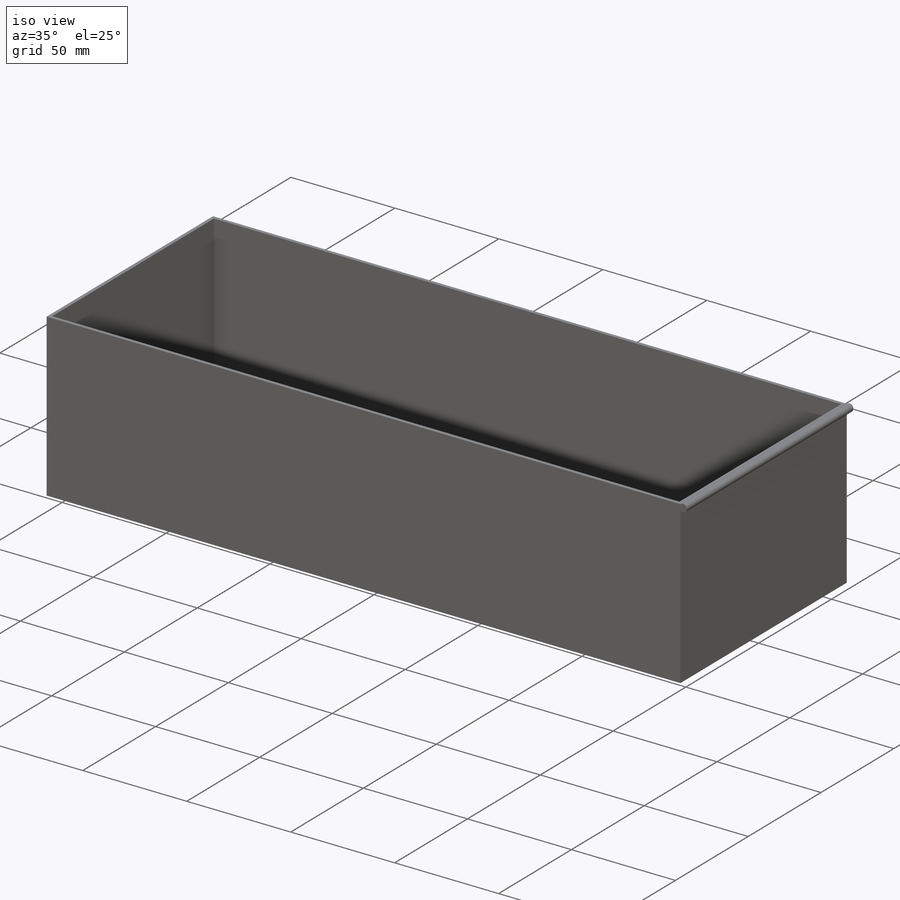
[diagram: iso view]
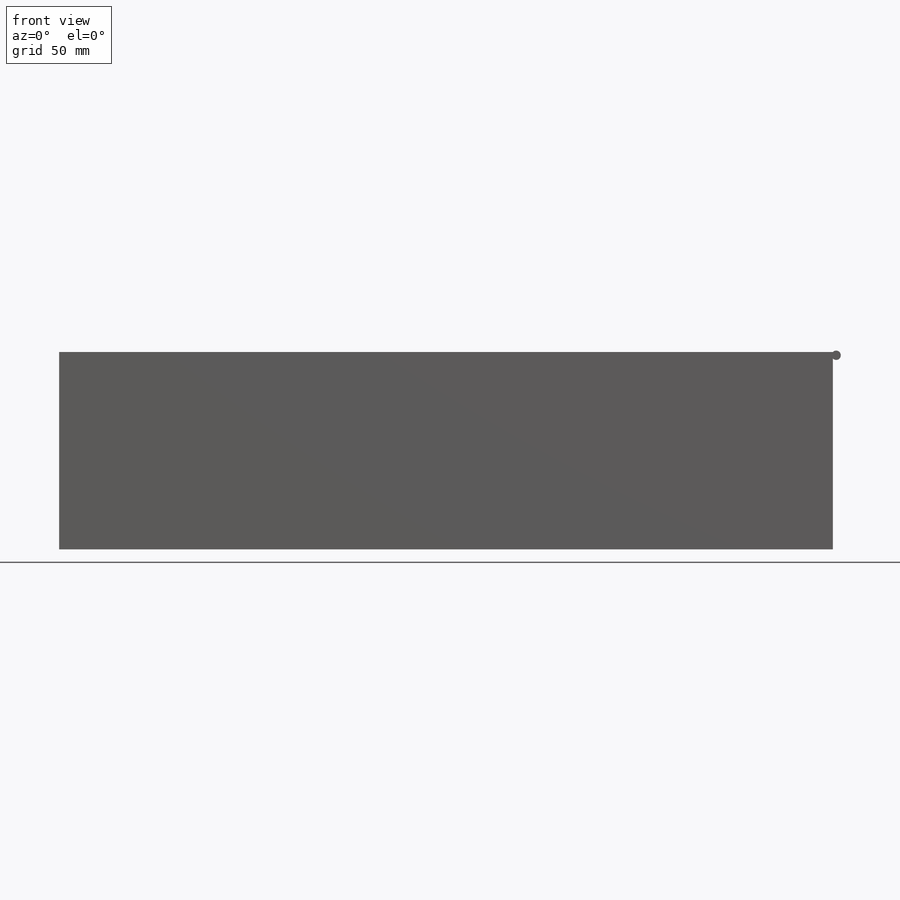
[diagram: front view]
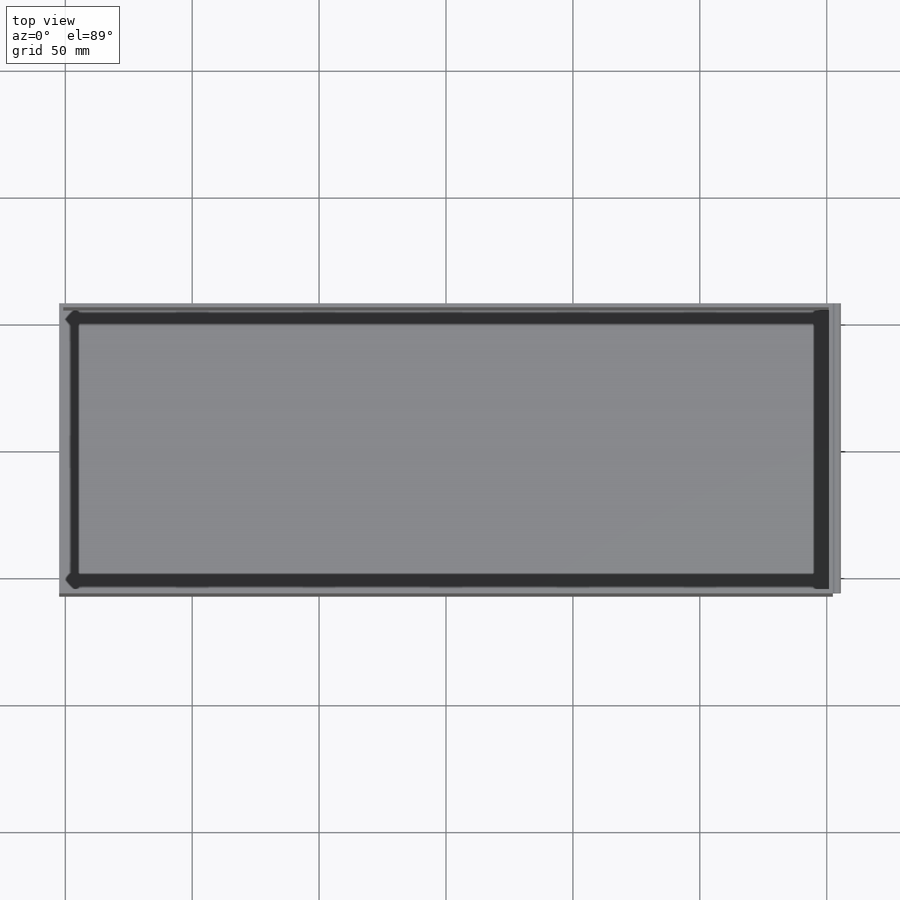
[diagram: top view]
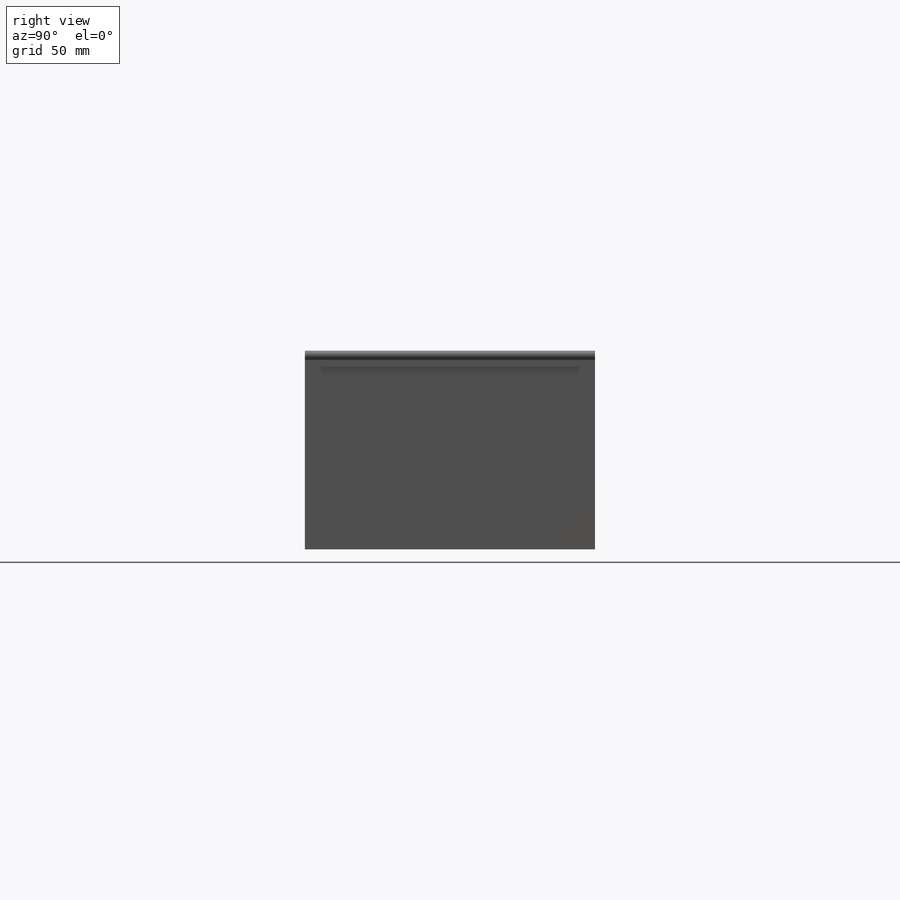
[diagram: right view]
SOLIDWORKS PART (.sldprt)
format: sldprt  version: not decoded by parser v0  size: 206,336 bytes
history: native  units: mm
features: sketch x3, extrude x3, material x1 (+11 scaffold rows collapsed)
feature tree (18):
  scaffold x11  (default folders/planes/origin — collapsed)
  material  "ASTM A36 Steel"
  sketch  "Sketch1"  dims[D1=114.3mm D2=304.8mm]
  extrude  "Boss-Extrude1"  Depth=1.5875mm
  sketch  "Sketch2"  dims[D1=1.5875mm D2=0.0mm]
  extrude  "Boss-Extrude2"  Depth=76.2mm
  sketch  "Sketch3"  dims[D1=~1.843764mm D2=~1.303738mm]
  extrude  "Boss-Extrude3"  Depth=114.3mm
decode coverage: 6 of 6 modeling features carry decoded parameters
note: ~ marks probable driven/reference dimensions
note: suppression state not decoded; provenance and decode notes live in map.json
